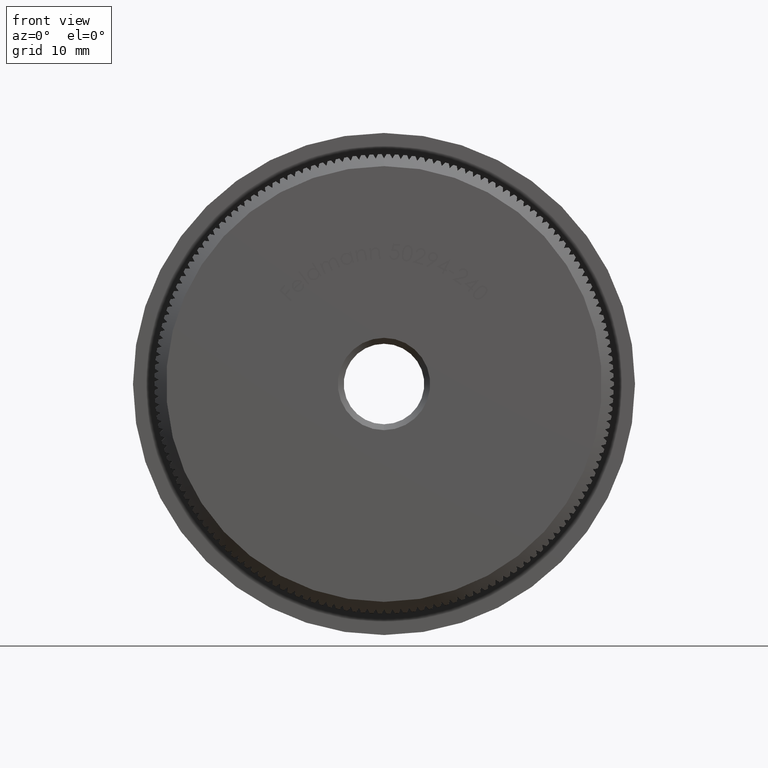
[diagram: clean part render]
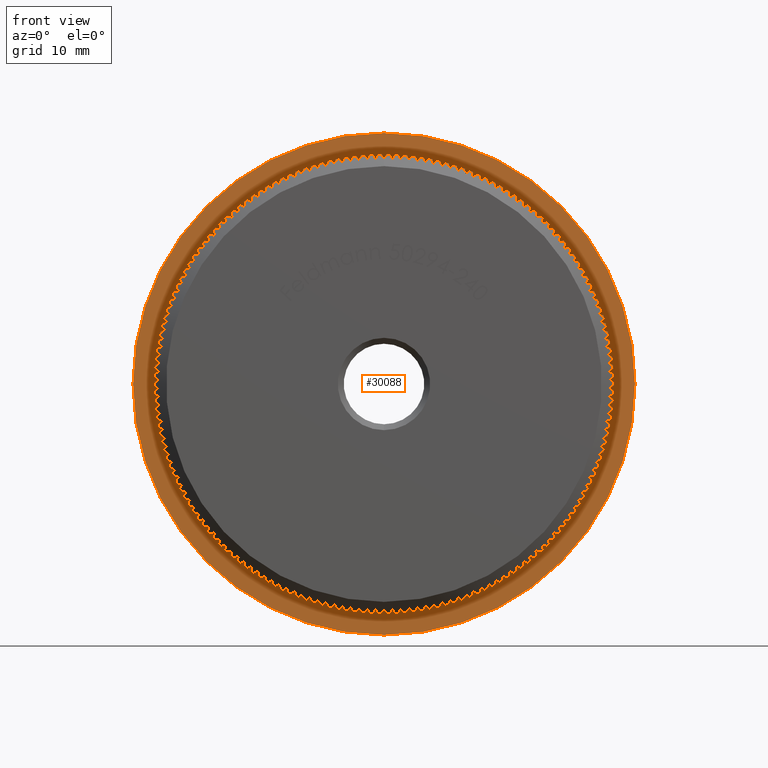
[diagram: same view with one face highlighted and labeled with its STEP entity id]
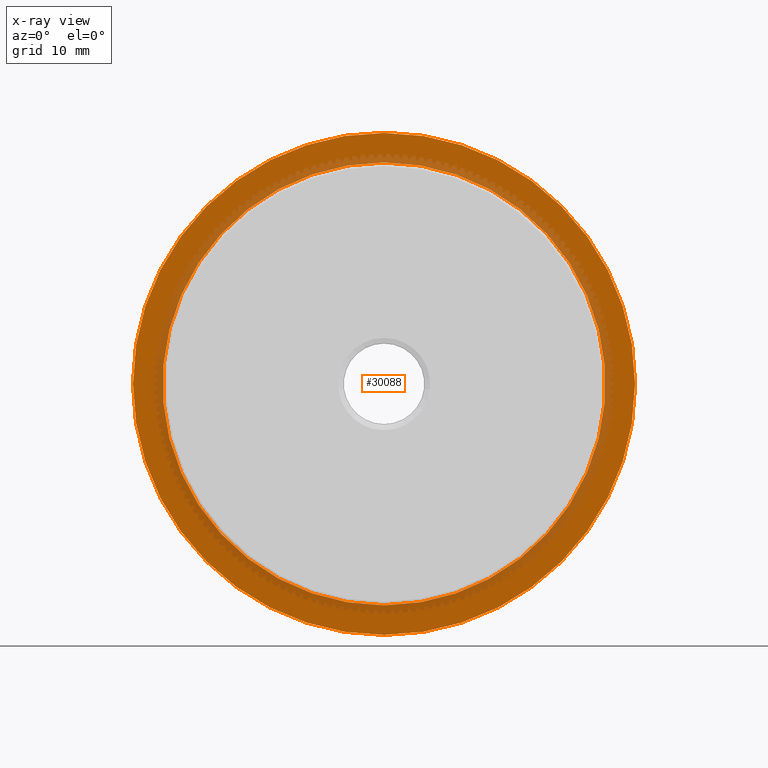
[diagram: x-ray of the same camera — body ghosted, the highlighted face saturated]
A machine part, front view. The second image highlights one B-rep face of the part: STEP entity #30088.
The next image is the same camera in x-ray: the body ghosted, the highlighted face saturated — about 25% of this face is hidden behind the body in this view.
In plain terms, the highlighted planar face has unit normal (0, -1, -0).
Its self-contained STEP definition (entity closure, byte-faithful):
#1041 = AXIS2_PLACEMENT_3D ( 'NONE', #16473, #23385, #23593 ) ;
#1070 = DIRECTION ( 'NONE',  ( 0.0000000000000000000, 0.0000000000000000000, -1.000000000000000000 ) ) ;
#2291 = CARTESIAN_POINT ( 'NONE',  ( 2.596251214192388800E-015, 8.000000000000000000, 21.19999999999999900 ) ) ;
#2540 = CARTESIAN_POINT ( 'NONE',  ( 0.0000000000000000000, 8.000000000000000000, 0.0000000000000000000 ) ) ;
#3281 = CARTESIAN_POINT ( 'NONE',  ( 2.332952152375707600E-015, 8.000000000000000000, 18.69999999999999900 ) ) ;
#5561 = EDGE_CURVE ( 'NONE', #8980, #18014, #22948, .T. ) ;
#6142 = CIRCLE ( 'NONE', #7706, 21.19999999999999900 ) ;
#7548 = ORIENTED_EDGE ( 'NONE', *, *, #8306, .F. ) ;
#7706 = AXIS2_PLACEMENT_3D ( 'NONE', #21955, #28924, #14870 ) ;
#8168 = CARTESIAN_POINT ( 'NONE',  ( 0.0000000000000000000, 8.000000000000000000, 0.0000000000000000000 ) ) ;
#8306 = EDGE_CURVE ( 'NONE', #14719, #26892, #13088, .T. ) ;
#8980 = VERTEX_POINT ( 'NONE', #18906 ) ;
#11695 = DIRECTION ( 'NONE',  ( 0.0000000000000000000, 0.0000000000000000000, -1.000000000000000000 ) ) ;
#12807 = EDGE_CURVE ( 'NONE', #26892, #14719, #24147, .T. ) ;
#13088 = CIRCLE ( 'NONE', #24403, 18.69999999999999900 ) ;
#13165 = EDGE_LOOP ( 'NONE', ( #14662, #28444 ) ) ;
#13584 = AXIS2_PLACEMENT_3D ( 'NONE', #8168, #18289, #11695 ) ;
#13822 = DIRECTION ( 'NONE',  ( 0.0000000000000000000, 0.0000000000000000000, -1.000000000000000000 ) ) ;
#14662 = ORIENTED_EDGE ( 'NONE', *, *, #5561, .T. ) ;
#14719 = VERTEX_POINT ( 'NONE', #20350 ) ;
#14870 = DIRECTION ( 'NONE',  ( 0.0000000000000000000, 0.0000000000000000000, -1.000000000000000000 ) ) ;
#14935 = AXIS2_PLACEMENT_3D ( 'NONE', #20478, #30526, #13822 ) ;
#16473 = CARTESIAN_POINT ( 'NONE',  ( 0.0000000000000000000, 8.000000000000000000, 0.0000000000000000000 ) ) ;
#16768 = ORIENTED_EDGE ( 'NONE', *, *, #12807, .F. ) ;
#18014 = VERTEX_POINT ( 'NONE', #2291 ) ;
#18063 = PLANE ( 'NONE',  #14935 ) ;
#18289 = DIRECTION ( 'NONE',  ( -0.0000000000000000000, -1.000000000000000000, -0.0000000000000000000 ) ) ;
#18906 = CARTESIAN_POINT ( 'NONE',  ( 0.0000000000000000000, 8.000000000000000000, -21.19999999999999900 ) ) ;
#20350 = CARTESIAN_POINT ( 'NONE',  ( 0.0000000000000000000, 8.000000000000000000, -18.69999999999999900 ) ) ;
#20478 = CARTESIAN_POINT ( 'NONE',  ( 18.69999999999999900, 8.000000000000000000, 0.0000000000000000000 ) ) ;
#21917 = EDGE_CURVE ( 'NONE', #18014, #8980, #6142, .T. ) ;
#21955 = CARTESIAN_POINT ( 'NONE',  ( 0.0000000000000000000, 8.000000000000000000, 0.0000000000000000000 ) ) ;
#22948 = CIRCLE ( 'NONE', #13584, 21.19999999999999900 ) ;
#23385 = DIRECTION ( 'NONE',  ( -0.0000000000000000000, -1.000000000000000000, -0.0000000000000000000 ) ) ;
#23593 = DIRECTION ( 'NONE',  ( 0.0000000000000000000, 0.0000000000000000000, -1.000000000000000000 ) ) ;
#24147 = CIRCLE ( 'NONE', #1041, 18.69999999999999900 ) ;
#24403 = AXIS2_PLACEMENT_3D ( 'NONE', #2540, #29289, #1070 ) ;
#26892 = VERTEX_POINT ( 'NONE', #3281 ) ;
#28444 = ORIENTED_EDGE ( 'NONE', *, *, #21917, .T. ) ;
#28924 = DIRECTION ( 'NONE',  ( -0.0000000000000000000, -1.000000000000000000, -0.0000000000000000000 ) ) ;
#29043 = EDGE_LOOP ( 'NONE', ( #7548, #16768 ) ) ;
#29267 = FACE_OUTER_BOUND ( 'NONE', #13165, .T. ) ;
#29289 = DIRECTION ( 'NONE',  ( -0.0000000000000000000, -1.000000000000000000, -0.0000000000000000000 ) ) ;
#30088 = ADVANCED_FACE ( 'NONE', ( #29267, #30344 ), #18063, .T. ) ;
#30344 = FACE_BOUND ( 'NONE', #29043, .T. ) ;
#30526 = DIRECTION ( 'NONE',  ( 0.0000000000000000000, -1.000000000000000000, -0.0000000000000000000 ) ) ;